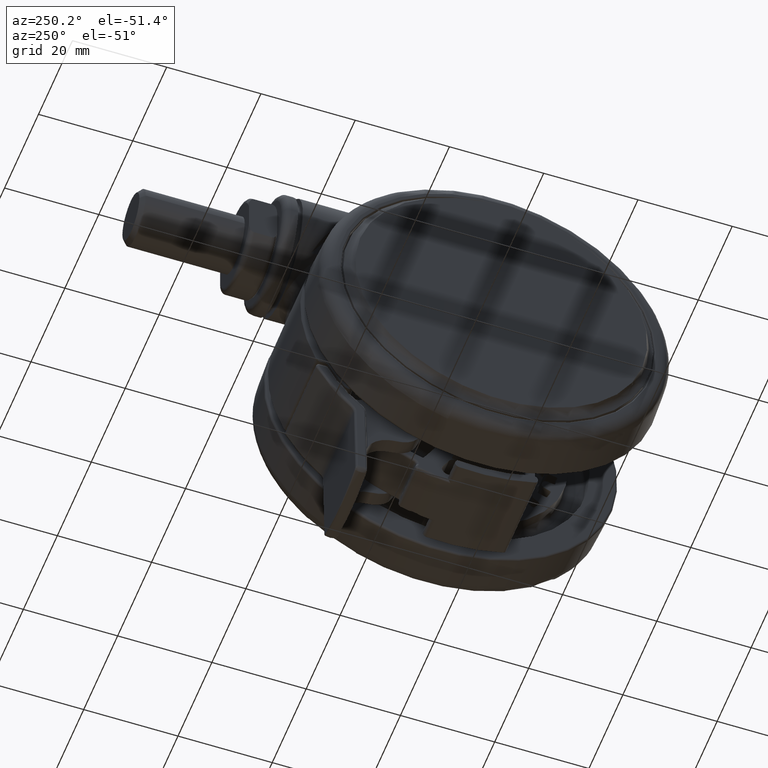
[diagram: clean part render]
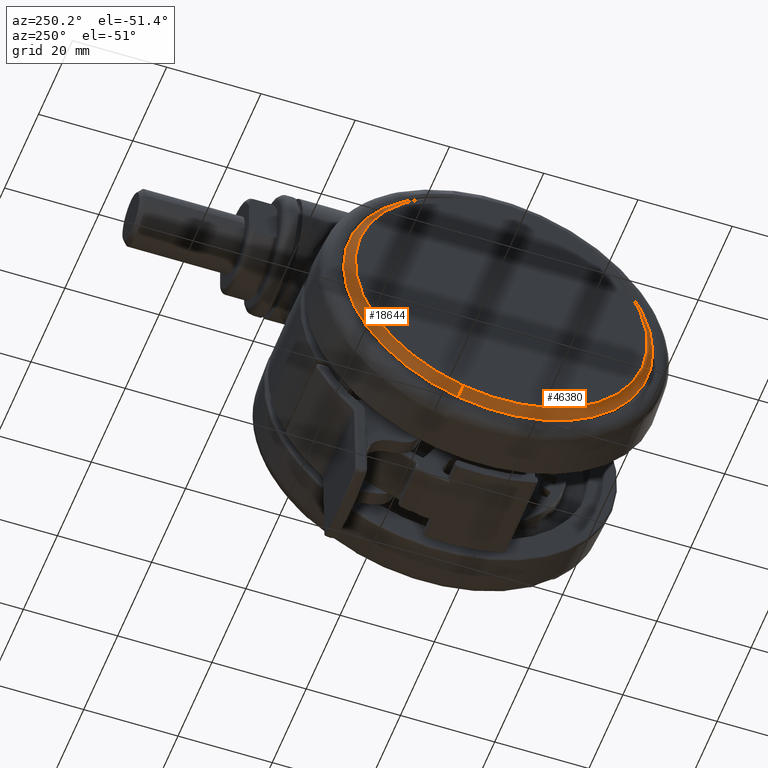
[diagram: same view with one multi-face feature highlighted, each face labeled with its STEP entity id]
A machine part, auxiliary view. The highlighted faces form ONE feature: a constant-radius fillet chain: 2 tangent blend faces with common blend radius 2.2 mm. The faces share edges in the B-rep.
Their STEP definitions:
[1] entity #18644 (Torus):
#64 = DIRECTION ( 'NONE',  ( -0.9314706048909622300, -0.3638165914634251000, 0.0000000000000000000 ) ) ;
#1034 = EDGE_LOOP ( 'NONE', ( #42444, #14347, #11925, #61020 ) ) ;
#2281 = DIRECTION ( 'NONE',  ( 0.3638165914634249900, -0.9314706048909624500, 0.0000000000000000000 ) ) ;
#4127 = DIRECTION ( 'NONE',  ( 0.0000000000000000000, -0.0000000000000000000, -1.000000000000000000 ) ) ;
#11036 = EDGE_CURVE ( 'NONE', #36272, #12229, #27684, .T. ) ;
#11925 = ORIENTED_EDGE ( 'NONE', *, *, #51170, .T. ) ;
#12229 = VERTEX_POINT ( 'NONE', #63359 ) ;
#14347 = ORIENTED_EDGE ( 'NONE', *, *, #62409, .F. ) ;
#15869 = VERTEX_POINT ( 'NONE', #26627 ) ;
#18644 = ADVANCED_FACE ( 'NONE', ( #66026 ), #50949, .F. ) ;
#20467 = DIRECTION ( 'NONE',  ( 0.0000000000000000000, -0.0000000000000000000, -1.000000000000000000 ) ) ;
#20905 = CARTESIAN_POINT ( 'NONE',  ( 12.06643510900078600, -30.89339484119827300, -48.08382838746730700 ) ) ;
#25398 = AXIS2_PLACEMENT_3D ( 'NONE', #20905, #60828, #26653 ) ;
#26503 = AXIS2_PLACEMENT_3D ( 'NONE', #70455, #36368, #2281 ) ;
#26627 = CARTESIAN_POINT ( 'NONE',  ( 11.27831433536617400, -28.87558875161984400, -47.69999999999990300 ) ) ;
#26653 = DIRECTION ( 'NONE',  ( -0.3638165914634249300, 0.9314706048909623400, 0.0000000000000000000 ) ) ;
#27684 = CIRCLE ( 'NONE', #65925, 2.199999999999999700 ) ;
#29435 = CIRCLE ( 'NONE', #25398, 2.199999999999999700 ) ;
#34147 = CARTESIAN_POINT ( 'NONE',  ( -12.06643510900080000, 30.89339484119827300, -48.08382838746730700 ) ) ;
#34392 = VERTEX_POINT ( 'NONE', #38005 ) ;
#34741 = AXIS2_PLACEMENT_3D ( 'NONE', #54713, #20467, #60389 ) ;
#35779 = CIRCLE ( 'NONE', #34741, 31.00000000000000400 ) ;
#36272 = VERTEX_POINT ( 'NONE', #41773 ) ;
#36368 = DIRECTION ( 'NONE',  ( 0.0000000000000000000, -0.0000000000000000000, -1.000000000000000000 ) ) ;
#38005 = CARTESIAN_POINT ( 'NONE',  ( 11.93897771778806800, -30.56706884047032000, -45.91190160355296300 ) ) ;
#39930 = DIRECTION ( 'NONE',  ( 0.3638165914634249300, -0.9314706048909623400, 0.0000000000000000000 ) ) ;
#41773 = CARTESIAN_POINT ( 'NONE',  ( -11.27831433536618600, 28.87558875161984400, -47.69999999999990300 ) ) ;
#42090 = AXIS2_PLACEMENT_3D ( 'NONE', #66600, #4127, #49723 ) ;
#42444 = ORIENTED_EDGE ( 'NONE', *, *, #11036, .F. ) ;
#49723 = DIRECTION ( 'NONE',  ( 0.3638165914634250400, -0.9314706048909623400, 0.0000000000000000000 ) ) ;
#50949 = TOROIDAL_SURFACE ( 'NONE', #42090, 33.16625847233755300, 2.200000000000000200 ) ;
#51170 = EDGE_CURVE ( 'NONE', #15869, #34392, #29435, .T. ) ;
#54713 = CARTESIAN_POINT ( 'NONE',  ( -5.204170427930421300E-015, 0.0000000000000000000, -47.69999999999990300 ) ) ;
#60389 = DIRECTION ( 'NONE',  ( 0.3638165914634250400, -0.9314706048909623400, 0.0000000000000000000 ) ) ;
#60828 = DIRECTION ( 'NONE',  ( 0.9314706048909624500, 0.3638165914634250400, 0.0000000000000000000 ) ) ;
#61020 = ORIENTED_EDGE ( 'NONE', *, *, #69152, .T. ) ;
#62409 = EDGE_CURVE ( 'NONE', #15869, #36272, #35779, .T. ) ;
#63359 = CARTESIAN_POINT ( 'NONE',  ( -11.93897771778808300, 30.56706884047032000, -45.91190160355296300 ) ) ;
#65925 = AXIS2_PLACEMENT_3D ( 'NONE', #34147, #64, #39930 ) ;
#66026 = FACE_OUTER_BOUND ( 'NONE', #1034, .T. ) ;
#66600 = CARTESIAN_POINT ( 'NONE',  ( -5.204170427930421300E-015, 0.0000000000000000000, -48.08382838746730700 ) ) ;
#69152 = EDGE_CURVE ( 'NONE', #34392, #12229, #69374, .T. ) ;
#69374 = CIRCLE ( 'NONE', #26503, 32.81592428140525200 ) ;
#70455 = CARTESIAN_POINT ( 'NONE',  ( -5.204170427930421300E-015, 0.0000000000000000000, -45.91190160355296300 ) ) ;
[2] entity #46380 (Torus):
#64 = DIRECTION ( 'NONE',  ( -0.9314706048909622300, -0.3638165914634251000, 0.0000000000000000000 ) ) ;
#5653 = DIRECTION ( 'NONE',  ( 0.3638165914634249900, -0.9314706048909624500, 0.0000000000000000000 ) ) ;
#8915 = EDGE_LOOP ( 'NONE', ( #30467, #50440, #21931, #69702 ) ) ;
#11036 = EDGE_CURVE ( 'NONE', #36272, #12229, #27684, .T. ) ;
#11586 = CARTESIAN_POINT ( 'NONE',  ( -5.204170427930421300E-015, 0.0000000000000000000, -47.69999999999990300 ) ) ;
#12229 = VERTEX_POINT ( 'NONE', #63359 ) ;
#15869 = VERTEX_POINT ( 'NONE', #26627 ) ;
#16418 = FACE_OUTER_BOUND ( 'NONE', #8915, .T. ) ;
#17267 = DIRECTION ( 'NONE',  ( 0.3638165914634250400, -0.9314706048909623400, 0.0000000000000000000 ) ) ;
#18024 = AXIS2_PLACEMENT_3D ( 'NONE', #34558, #57029, #46091 ) ;
#20905 = CARTESIAN_POINT ( 'NONE',  ( 12.06643510900078600, -30.89339484119827300, -48.08382838746730700 ) ) ;
#21931 = ORIENTED_EDGE ( 'NONE', *, *, #59919, .T. ) ;
#25398 = AXIS2_PLACEMENT_3D ( 'NONE', #20905, #60828, #26653 ) ;
#26627 = CARTESIAN_POINT ( 'NONE',  ( 11.27831433536617400, -28.87558875161984400, -47.69999999999990300 ) ) ;
#26653 = DIRECTION ( 'NONE',  ( -0.3638165914634249300, 0.9314706048909623400, 0.0000000000000000000 ) ) ;
#27684 = CIRCLE ( 'NONE', #65925, 2.199999999999999700 ) ;
#28426 = EDGE_CURVE ( 'NONE', #36272, #15869, #34855, .T. ) ;
#29435 = CIRCLE ( 'NONE', #25398, 2.199999999999999700 ) ;
#30467 = ORIENTED_EDGE ( 'NONE', *, *, #28426, .F. ) ;
#34147 = CARTESIAN_POINT ( 'NONE',  ( -12.06643510900080000, 30.89339484119827300, -48.08382838746730700 ) ) ;
#34392 = VERTEX_POINT ( 'NONE', #38005 ) ;
#34558 = CARTESIAN_POINT ( 'NONE',  ( -5.204170427930421300E-015, 0.0000000000000000000, -48.08382838746730700 ) ) ;
#34855 = CIRCLE ( 'NONE', #70291, 31.00000000000000400 ) ;
#36272 = VERTEX_POINT ( 'NONE', #41773 ) ;
#38005 = CARTESIAN_POINT ( 'NONE',  ( 11.93897771778806800, -30.56706884047032000, -45.91190160355296300 ) ) ;
#38792 = CIRCLE ( 'NONE', #38908, 32.81592428140525200 ) ;
#38908 = AXIS2_PLACEMENT_3D ( 'NONE', #73862, #39775, #5653 ) ;
#39775 = DIRECTION ( 'NONE',  ( 0.0000000000000000000, -0.0000000000000000000, -1.000000000000000000 ) ) ;
#39930 = DIRECTION ( 'NONE',  ( 0.3638165914634249300, -0.9314706048909623400, 0.0000000000000000000 ) ) ;
#41773 = CARTESIAN_POINT ( 'NONE',  ( -11.27831433536618600, 28.87558875161984400, -47.69999999999990300 ) ) ;
#46091 = DIRECTION ( 'NONE',  ( 0.3638165914634250400, -0.9314706048909623400, 0.0000000000000000000 ) ) ;
#46380 = ADVANCED_FACE ( 'NONE', ( #16418 ), #46841, .F. ) ;
#46841 = TOROIDAL_SURFACE ( 'NONE', #18024, 33.16625847233755300, 2.200000000000000200 ) ;
#50440 = ORIENTED_EDGE ( 'NONE', *, *, #11036, .T. ) ;
#51170 = EDGE_CURVE ( 'NONE', #15869, #34392, #29435, .T. ) ;
#51508 = DIRECTION ( 'NONE',  ( 0.0000000000000000000, -0.0000000000000000000, -1.000000000000000000 ) ) ;
#57029 = DIRECTION ( 'NONE',  ( 0.0000000000000000000, -0.0000000000000000000, -1.000000000000000000 ) ) ;
#59919 = EDGE_CURVE ( 'NONE', #12229, #34392, #38792, .T. ) ;
#60828 = DIRECTION ( 'NONE',  ( 0.9314706048909624500, 0.3638165914634250400, 0.0000000000000000000 ) ) ;
#63359 = CARTESIAN_POINT ( 'NONE',  ( -11.93897771778808300, 30.56706884047032000, -45.91190160355296300 ) ) ;
#65925 = AXIS2_PLACEMENT_3D ( 'NONE', #34147, #64, #39930 ) ;
#69702 = ORIENTED_EDGE ( 'NONE', *, *, #51170, .F. ) ;
#70291 = AXIS2_PLACEMENT_3D ( 'NONE', #11586, #51508, #17267 ) ;
#73862 = CARTESIAN_POINT ( 'NONE',  ( -5.204170427930421300E-015, 0.0000000000000000000, -45.91190160355296300 ) ) ;